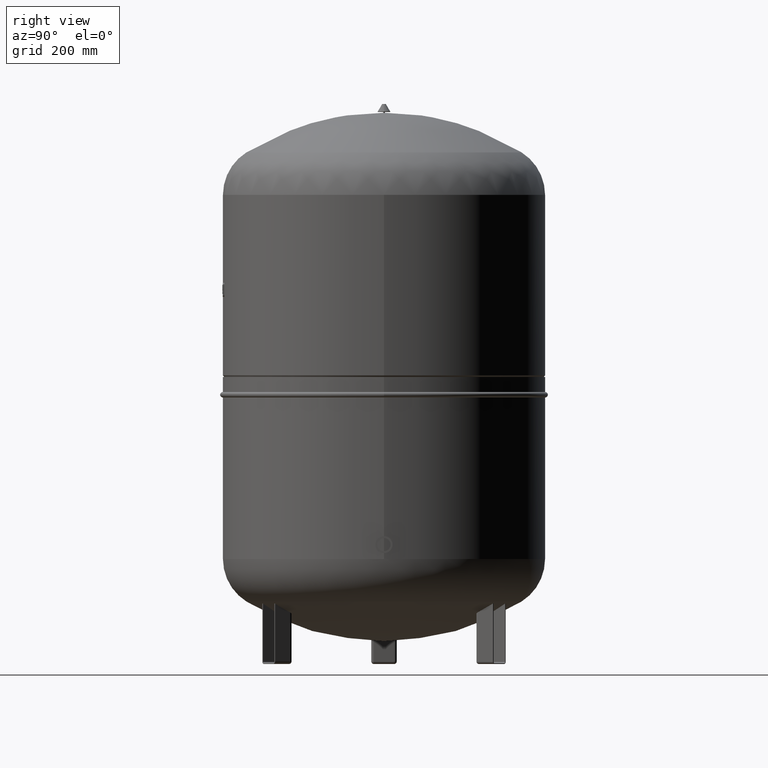
[diagram: clean part render]
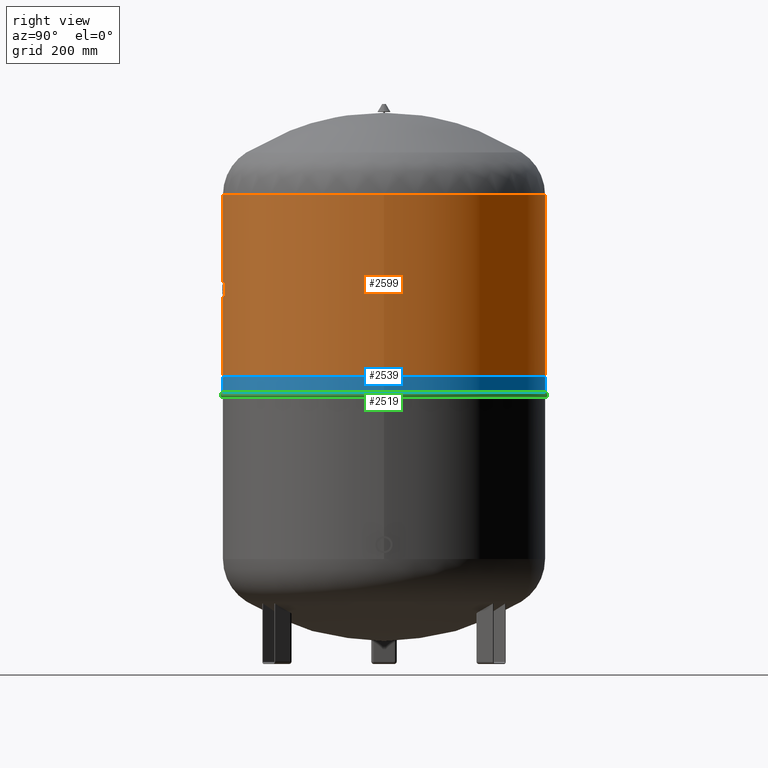
[diagram: same view with three faces highlighted in distinct colors, each labeled with its STEP entity id]
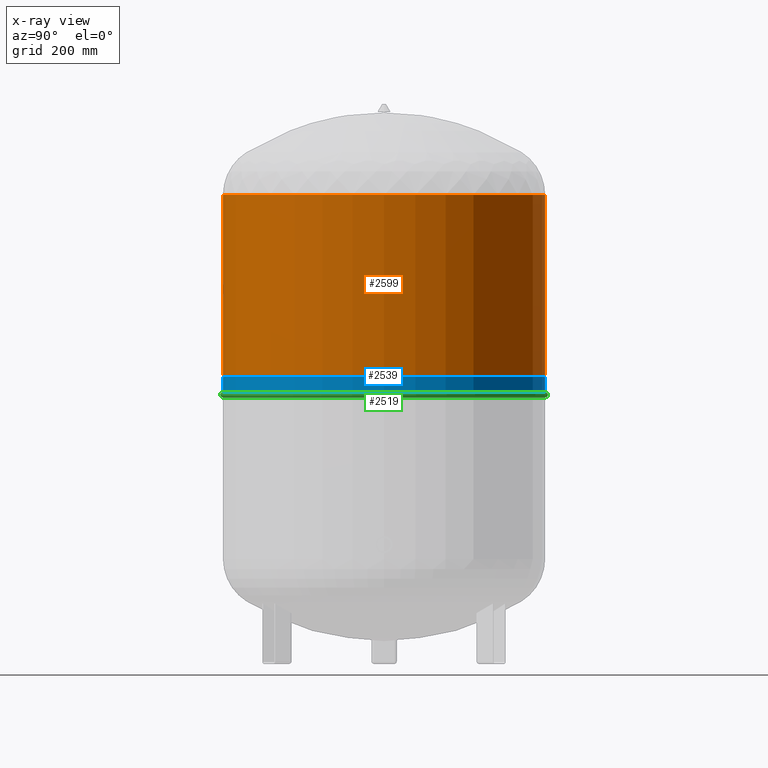
[diagram: x-ray of the same camera — body ghosted, the three highlighted faces saturated]
A machine part, right view with three faces highlighted in distinct colors.
The next image is the same camera in x-ray (body ghosted, the three faces saturated) — at least one of them is partly hidden behind the body in this view.
Their STEP definitions:

[orange] entity #2599 — the highlighted cylindrical surface (bore or boss wall) has radius 317 mm, axis along (0, 0, 1).
#2565=CARTESIAN_POINT('',(316.999999999999940,0.0,567.999991852234640));
#2566=VERTEX_POINT('',#2565);
#2567=CARTESIAN_POINT('',(1.398429E-016,0.0,567.999991852234530));
#2568=DIRECTION('',(0.0,0.0,1.0));
#2569=DIRECTION('',(1.0,0.0,0.0));
#2570=AXIS2_PLACEMENT_3D('',#2567,#2568,#2569);
#2571=CIRCLE('',#2570,316.999999999999940);
#2572=EDGE_CURVE('',#2566,#2566,#2571,.T.);
#2580=CARTESIAN_POINT('',(8.413904E-015,0.0,745.499995926117210));
#2581=DIRECTION('',(4.661443E-017,0.0,1.0));
#2582=DIRECTION('',(1.0,0.0,0.0));
#2583=AXIS2_PLACEMENT_3D('',#2580,#2581,#2582);
#2584=CYLINDRICAL_SURFACE('',#2583,316.999999999999940);
#2585=CARTESIAN_POINT('',(317.0,0.0,922.999999999999890));
#2586=VERTEX_POINT('',#2585);
#2587=CARTESIAN_POINT('',(1.668796E-014,0.0,922.999999999999890));
#2588=DIRECTION('',(0.0,0.0,1.0));
#2589=DIRECTION('',(1.0,0.0,0.0));
#2590=AXIS2_PLACEMENT_3D('',#2587,#2588,#2589);
#2591=CIRCLE('',#2590,317.0);
#2592=EDGE_CURVE('',#2586,#2586,#2591,.T.);
#2593=ORIENTED_EDGE('',*,*,#2592,.F.);
#2594=EDGE_LOOP('',(#2593));
#2595=FACE_OUTER_BOUND('',#2594,.T.);
#2596=ORIENTED_EDGE('',*,*,#2572,.T.);
#2597=EDGE_LOOP('',(#2596));
#2598=FACE_BOUND('',#2597,.T.);
#2599=ADVANCED_FACE('',(#2595,#2598),#2584,.T.);

[blue] entity #2539 — the highlighted cylindrical surface (bore or boss wall) has radius 317.007 mm, axis along (0, 0, 1).
#2508=CARTESIAN_POINT('',(317.006991890022050,0.0,535.450004485004230));
#2509=VERTEX_POINT('',#2508);
#2510=CARTESIAN_POINT('',(-1.377456E-015,0.0,535.450004485004230));
#2511=DIRECTION('',(0.0,0.0,1.0));
#2512=DIRECTION('',(1.0,0.0,0.0));
#2513=AXIS2_PLACEMENT_3D('',#2510,#2511,#2512);
#2514=CIRCLE('',#2513,317.006991890022050);
#2515=EDGE_CURVE('',#2509,#2509,#2514,.T.);
#2520=CARTESIAN_POINT('',(-6.887280E-016,0.0,550.225002242502110));
#2521=DIRECTION('',(4.661443E-017,0.0,1.0));
#2522=DIRECTION('',(1.0,0.0,0.0));
#2523=AXIS2_PLACEMENT_3D('',#2520,#2521,#2522);
#2524=CYLINDRICAL_SURFACE('',#2523,317.006991890022050);
#2525=CARTESIAN_POINT('',(317.006991890022050,0.0,565.0));
#2526=VERTEX_POINT('',#2525);
#2527=CARTESIAN_POINT('',(0.0,0.0,565.0));
#2528=DIRECTION('',(0.0,0.0,1.0));
#2529=DIRECTION('',(1.0,0.0,0.0));
#2530=AXIS2_PLACEMENT_3D('',#2527,#2528,#2529);
#2531=CIRCLE('',#2530,317.006991890022050);
#2532=EDGE_CURVE('',#2526,#2526,#2531,.T.);
#2533=ORIENTED_EDGE('',*,*,#2532,.F.);
#2534=EDGE_LOOP('',(#2533));
#2535=FACE_OUTER_BOUND('',#2534,.T.);
#2536=ORIENTED_EDGE('',*,*,#2515,.T.);
#2537=EDGE_LOOP('',(#2536));
#2538=FACE_BOUND('',#2537,.T.);
#2539=ADVANCED_FACE('',(#2535,#2538),#2524,.T.);

[green] entity #2519 — the highlighted toroidal blend (fillet) surface has major radius 317.007 mm and minor (blend) radius 5.45 mm.
#2428=CARTESIAN_POINT('',(317.000000000000110,0.0,524.550004485004250));
#2429=VERTEX_POINT('',#2428);
#2438=CARTESIAN_POINT('',(-317.000000000000060,-3.882002E-014,524.550004485004250));
#2439=VERTEX_POINT('',#2438);
#2440=CARTESIAN_POINT('',(-1.885553E-015,0.0,524.550004485004250));
#2441=DIRECTION('',(0.0,0.0,1.0));
#2442=DIRECTION('',(1.0,0.0,0.0));
#2443=AXIS2_PLACEMENT_3D('',#2440,#2441,#2442);
#2444=CIRCLE('',#2443,317.000000000000110);
#2445=EDGE_CURVE('',#2439,#2429,#2444,.T.);
#2489=CARTESIAN_POINT('',(-1.885553E-015,0.0,524.550004485004250));
#2490=DIRECTION('',(0.0,0.0,1.0));
#2491=DIRECTION('',(1.0,0.0,0.0));
#2492=AXIS2_PLACEMENT_3D('',#2489,#2490,#2491);
#2493=CIRCLE('',#2492,317.000000000000110);
#2494=EDGE_CURVE('',#2429,#2439,#2493,.T.);
#2499=CARTESIAN_POINT('',(-3.552714E-014,0.0,530.0));
#2500=DIRECTION('',(4.661443E-017,0.0,1.0));
#2501=DIRECTION('',(1.0,0.0,0.0));
#2502=AXIS2_PLACEMENT_3D('',#2499,#2500,#2501);
#2503=TOROIDAL_SURFACE('',#2502,317.006991890022110,5.449999999999999);
#2504=ORIENTED_EDGE('',*,*,#2494,.T.);
#2505=ORIENTED_EDGE('',*,*,#2445,.T.);
#2506=EDGE_LOOP('',(#2504,#2505));
#2507=FACE_OUTER_BOUND('',#2506,.T.);
#2508=CARTESIAN_POINT('',(317.006991890022050,0.0,535.450004485004230));
#2509=VERTEX_POINT('',#2508);
#2510=CARTESIAN_POINT('',(-1.377456E-015,0.0,535.450004485004230));
#2511=DIRECTION('',(0.0,0.0,1.0));
#2512=DIRECTION('',(1.0,0.0,0.0));
#2513=AXIS2_PLACEMENT_3D('',#2510,#2511,#2512);
#2514=CIRCLE('',#2513,317.006991890022050);
#2515=EDGE_CURVE('',#2509,#2509,#2514,.T.);
#2516=ORIENTED_EDGE('',*,*,#2515,.F.);
#2517=EDGE_LOOP('',(#2516));
#2518=FACE_BOUND('',#2517,.T.);
#2519=ADVANCED_FACE('',(#2507,#2518),#2503,.T.);